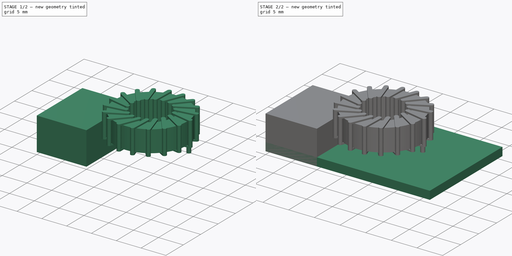
[diagram: build sequence overview — one tinted view per stage of 2, left to right]
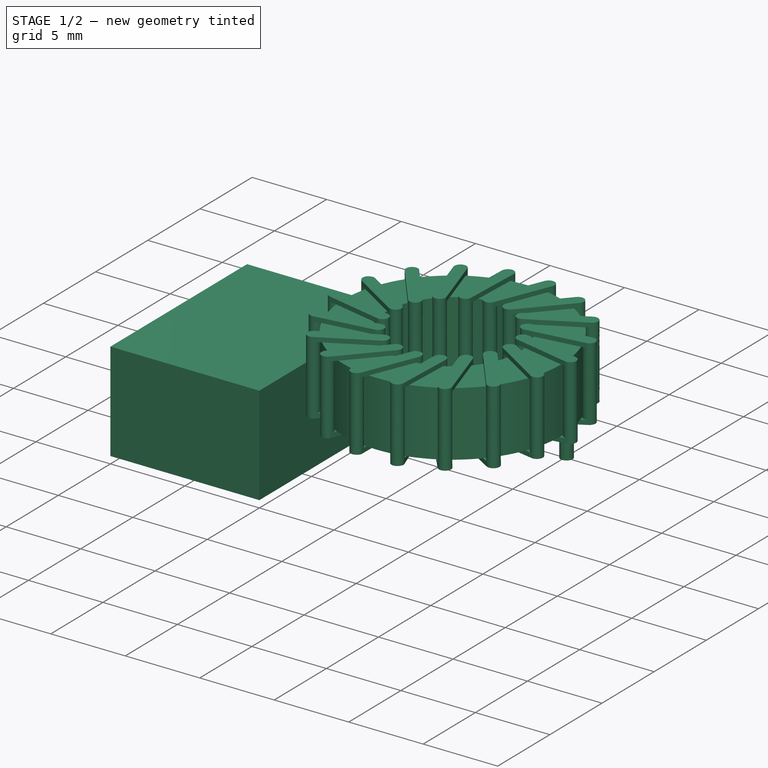
[diagram: stage 1 of 2 — iso view after this stage's code; geometry added in this stage tinted green]
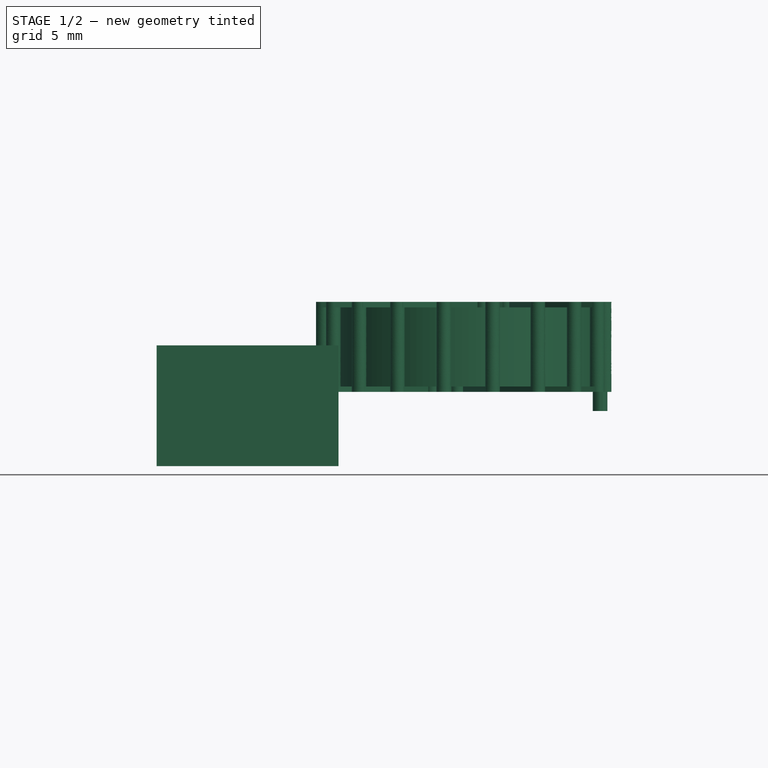
[diagram: stage 1 of 2 — front view after this stage's code; geometry added in this stage tinted green]
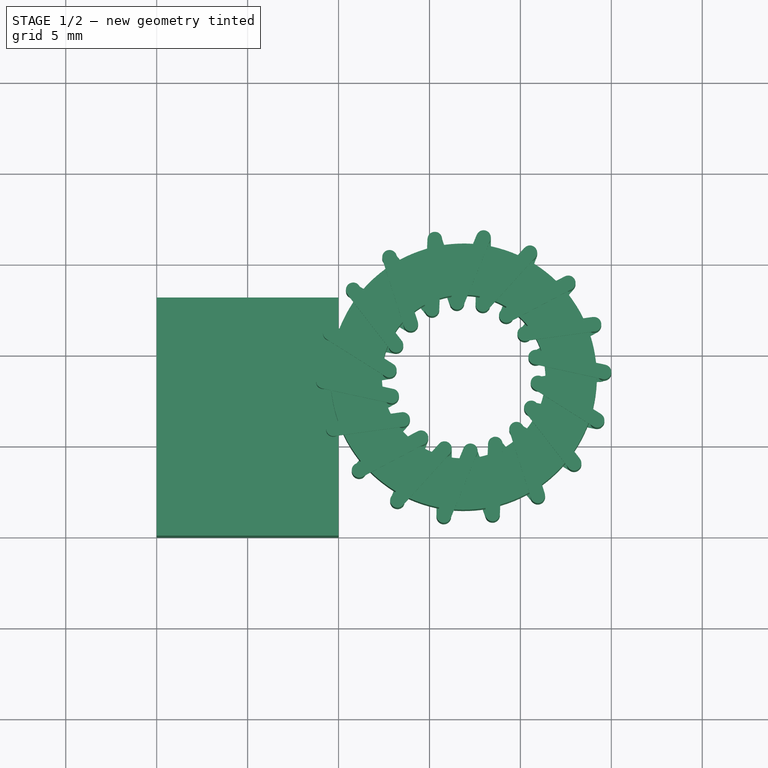
[diagram: stage 1 of 2 — top view after this stage's code; geometry added in this stage tinted green]
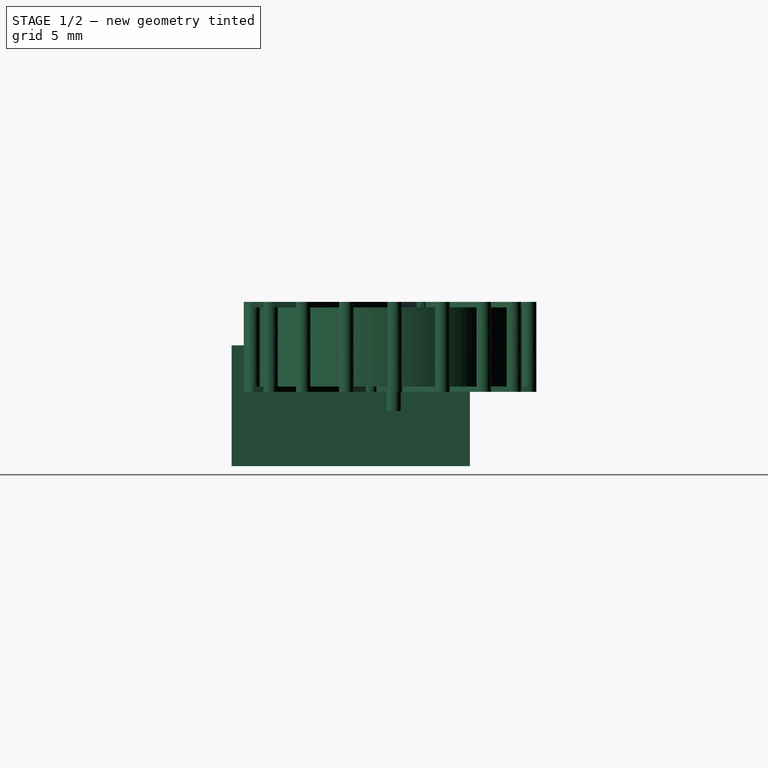
[diagram: stage 1 of 2 — right view after this stage's code; geometry added in this stage tinted green]
FCSTD DOCUMENT  (FreeCAD 0.20R29177 (Git))
Label: moduleUSB_IP6505_QC3
License: All rights reserved
LicenseURL: http://en.wikipedia.org/wiki/All_rights_reserved
objects: App::Part×3, Sketcher::SketchObject×2, PartDesign::Pad×2, PartDesign::Body×2, Part::Feature×2, Spreadsheet::Sheet×1, Part::FeaturePython×1
note: 11 computed .brp shape members not serialized (recipe doc carries the construction recipe); baked Part::Feature solids carry a one-line shape summary decoded from their .brp

FEATURE [PartDesign::Body] Body  label="boardBdy"
  Group = -> [Sketch,Pad]
  Origin = -> Origin004
  Tip = -> Pad
FEATURE [App::Part] Part001  label="BoardPrt"
  Group = -> [Body]
  Origin = -> Origin002
FEATURE [Sketcher::SketchObject] Sketch001
  FullyConstrained = true
  MapMode = 5
  Support = -> [XY_Plane005]
  expr: Constraints[10] = Spreadsheet.usbLong
  expr: Constraints[9] = <<ip6505Sp>>.usbLarg
  sketch-geometry (4):
    g0: LineSegment StartX=0 StartY=0 StartZ=0 EndX=10 EndY=0 EndZ=0
    g1: LineSegment StartX=10 StartY=0 StartZ=0 EndX=10 EndY=13.1 EndZ=0
    g2: LineSegment StartX=10 StartY=13.1 StartZ=0 EndX=0 EndY=13.1 EndZ=0
    g3: LineSegment StartX=0 StartY=13.1 StartZ=0 EndX=0 EndY=0 EndZ=0
  constraints (11):
    c: Coincident(g0,g1)
    c: Coincident(g1,g2)
    c: Coincident(g2,g3)
    c: Coincident(g3,g0)
    c: Horizontal(g0)
    c: Horizontal(g2)
    c: Vertical(g1)
    c: Vertical(g3)
    c: Coincident(g0,g-1)
    c: DistanceX(g2,g1) = 10
    c: DistanceY(g0,g1) = 13.1
FEATURE [PartDesign::Pad] Pad001
  Direction = (0,0,1)
  Length = 6.64
  Length2 = 10
  Profile = -> Sketch001
  ReferenceAxis = -> Sketch001 [N_Axis]
  Type = 0
  expr: Length = <<ip6505Sp>>.usbHaut
FEATURE [PartDesign::Body] Body001
  Group = -> [Sketch001,Pad001]
  Origin = -> Origin005
  Tip = -> Pad001
FEATURE [App::Part] Part002  label="Connector"
  Group = -> [Body001]
  Origin = -> Origin003
  Placement = pos=(-1.6,3.55,1.6) rot=(0,0,1;0rad)
  expr: .Placement.Base.x = Spreadsheet.usbPosX
  expr: .Placement.Base.y = <<ip6505Sp>>.usbPosY
  expr: .Placement.Base.z = <<ip6505Sp>>.boardEp
FEATURE [Part::Feature] Part__Feature  label="Document"
  Placement = pos=(23.74,9.06,1.56) rot=(0,0,1;1.5708rad)
  shape: bbox 6.314 x 7.023 x 3.713 mm, 402 faces, 9 solids (baked)
FEATURE [App::Part] Part  label="IP6505Prt"
  Group = -> [Part001,Part002,Part__Feature]
  Origin = -> Origin
FEATURE [Part::Feature] Part__Feature001  label="2301-H-RC v1"
  Placement = pos=(15.81,9.84,3.38) rot=(0,0,1;0rad)
  shape: bbox 32.48 x 32.18 x 20 mm, 439 faces, 2 solids (baked)
FEATURE [Part::FeaturePython] Clone  label="2301-H-RC v002"  # Draft clone (typed FeaturePython)
  AttacherType = Attacher::AttachEngine3D
  Fuse = false
  Objects = -> [Part__Feature001]
  Placement = pos=(16.88,8.71,4.38) rot=(0,0,1;0rad)
  Scale = (0.5,0.5,0.3)
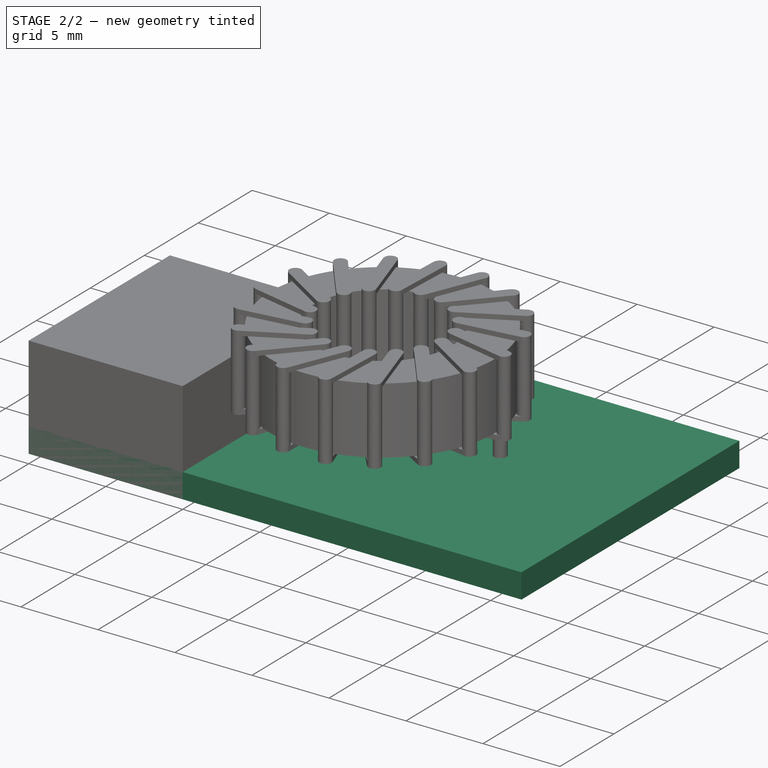
[diagram: stage 2 of 2 — iso view after this stage's code; geometry added in this stage tinted green]
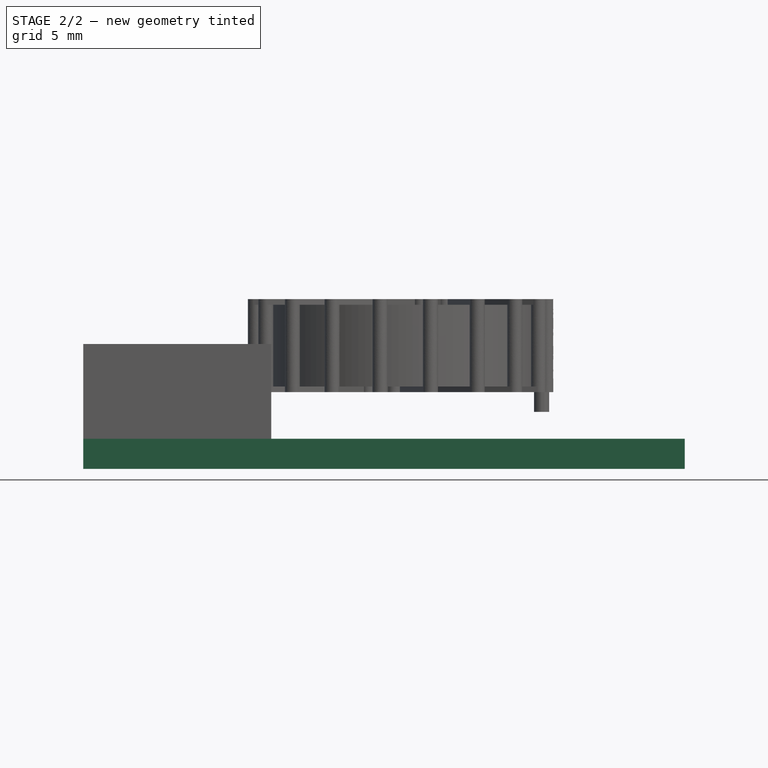
[diagram: stage 2 of 2 — front view after this stage's code; geometry added in this stage tinted green]
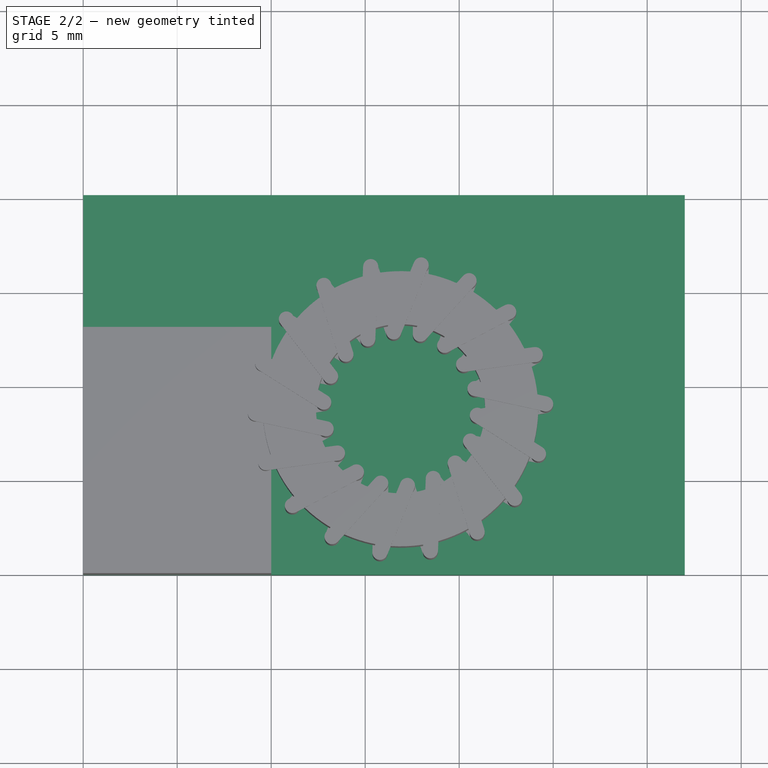
[diagram: stage 2 of 2 — top view after this stage's code; geometry added in this stage tinted green]
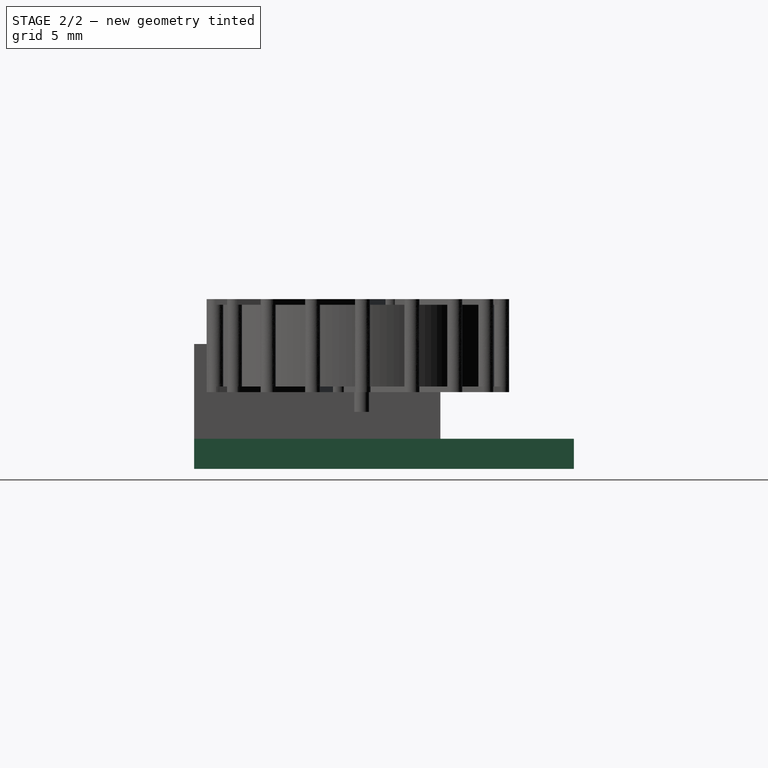
[diagram: stage 2 of 2 — right view after this stage's code; geometry added in this stage tinted green]
FEATURE [Spreadsheet::Sheet] Spreadsheet  label="ip6505Sp"
  cells = A2=boardLong; B2(boardLong)=32; A3=boardLarg; B3(boardLarg)=20.2; A4=boardEp; B4(boardEp)=1.6; A5=usbLong; B5(usbLong)=13.1; A6=usbLarg; B6(usbLarg)=10; A7=usbHaut; B7(usbHaut)=6.64; A8=usbPosX; B8(usbPosX)=-1.6; A9=usbPosY; B9(usbPosY)==(boardLarg - usbLong) / 2; A10=capaDiam; B10(capaDiam)=6.29; A11=capaHaut; B11(capaHaut)=8; A12=capaPosY; B12(capaPosY)=13.38; A13=capaPosZ; B13(capaPosZ)==boardEp; A14=capa1PosX; B14(capa1PosX)=16.5; A15=capa2PosX; B15(capa2PosX)=24.4
FEATURE [Sketcher::SketchObject] Sketch
  FullyConstrained = true
  MapMode = 5
  Support = -> [XY_Plane004]
  expr: Constraints[10] = <<ip6505Sp>>.boardLarg
  expr: Constraints[9] = <<ip6505Sp>>.boardLong
  sketch-geometry (4):
    g0: LineSegment StartX=0 StartY=0 StartZ=0 EndX=32 EndY=0 EndZ=0
    g1: LineSegment StartX=32 StartY=0 StartZ=0 EndX=32 EndY=20.2 EndZ=0
    g2: LineSegment StartX=32 StartY=20.2 StartZ=0 EndX=0 EndY=20.2 EndZ=0
    g3: LineSegment StartX=0 StartY=20.2 StartZ=0 EndX=0 EndY=0 EndZ=0
  constraints (11):
    c: Coincident(g0,g1)
    c: Coincident(g1,g2)
    c: Coincident(g2,g3)
    c: Coincident(g3,g0)
    c: Horizontal(g0)
    c: Horizontal(g2)
    c: Vertical(g1)
    c: Vertical(g3)
    c: Coincident(g0,g-1)
    c: DistanceX(g2,g1) = 32
    c: DistanceY(g0,g1) = 20.2
FEATURE [PartDesign::Pad] Pad
  Direction = (0,0,1)
  Length = 1.6
  Length2 = 10
  Profile = -> Sketch
  ReferenceAxis = -> Sketch [N_Axis]
  Type = 0
  expr: Length = <<ip6505Sp>>.boardEp
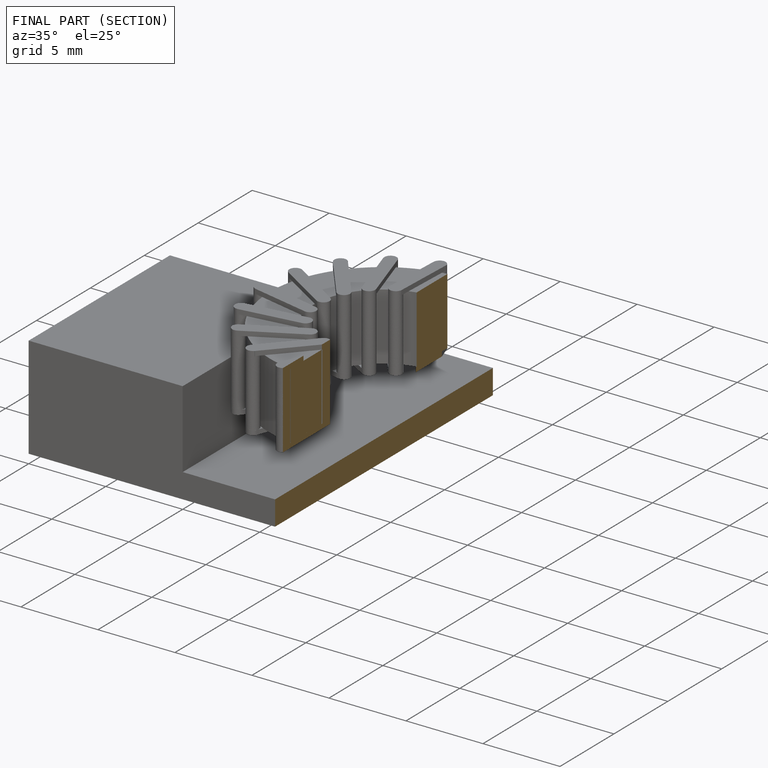
[diagram: finished part — half-section view (interior)]
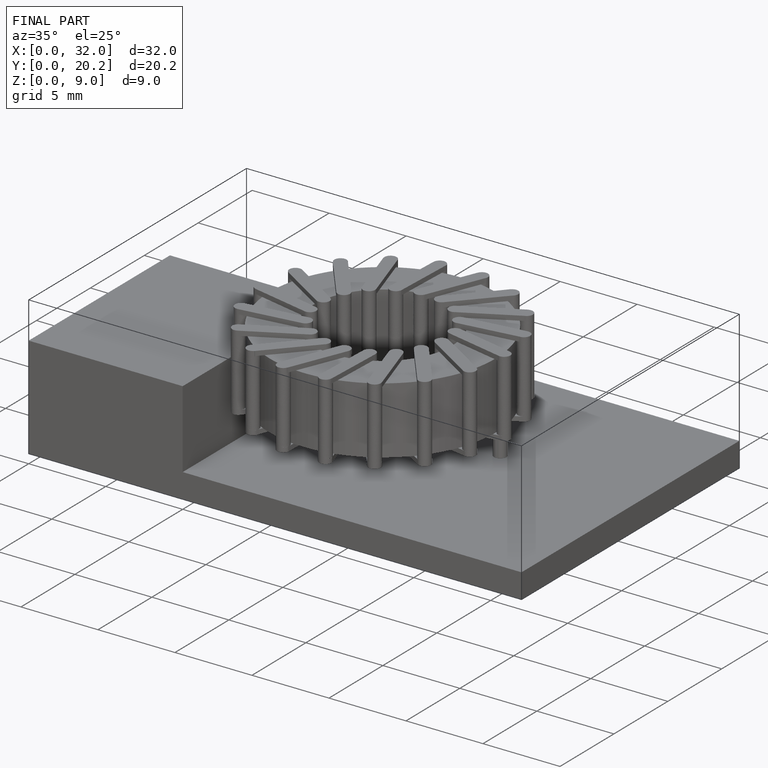
[diagram: finished part — iso view with bounding-box wireframe]
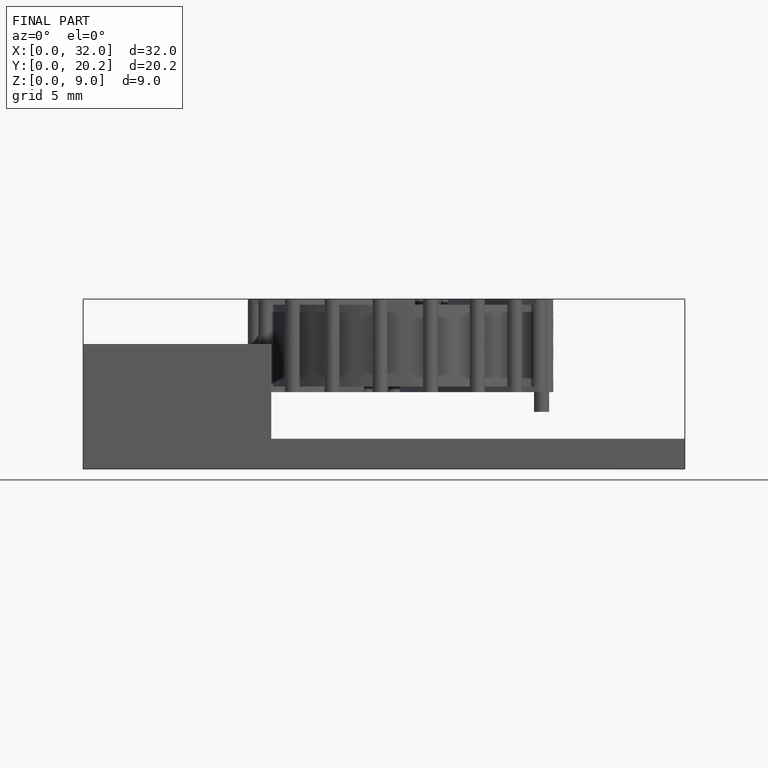
[diagram: finished part — front view with bounding-box wireframe]
